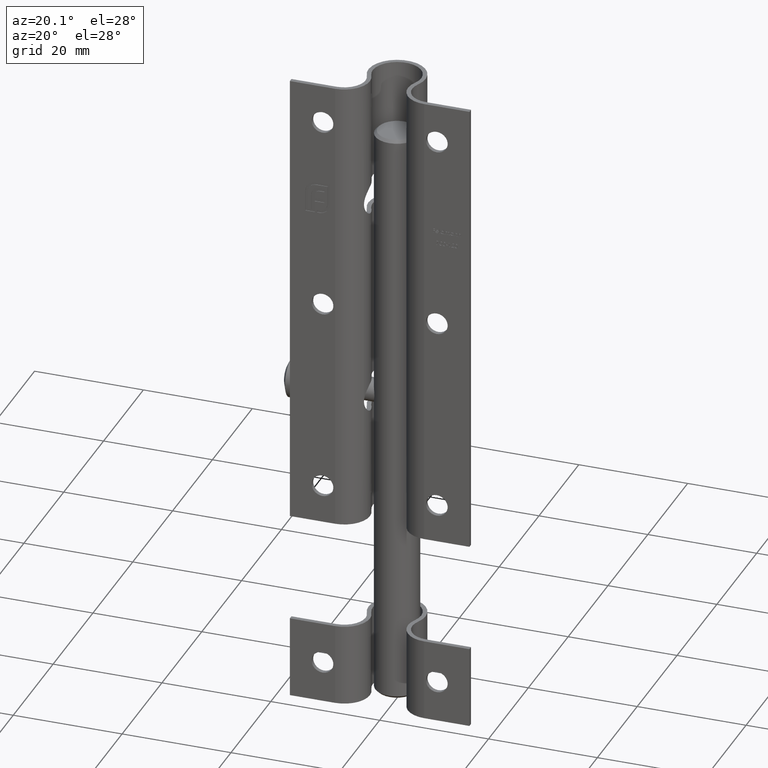
[diagram: clean part render]
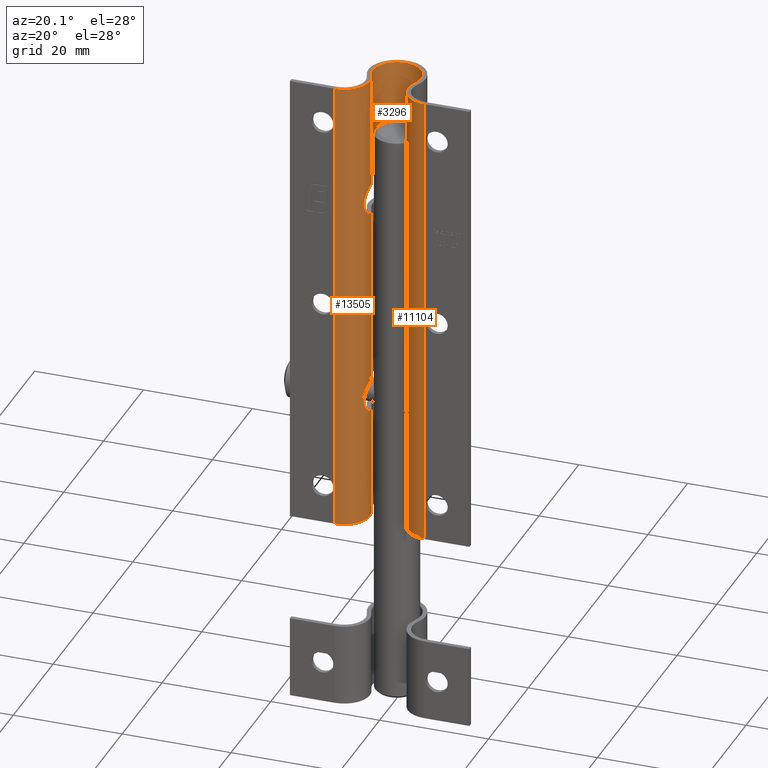
[diagram: same view with one multi-face feature highlighted, each face labeled with its STEP entity id]
A machine part, auxiliary view. The highlighted faces form ONE feature: a constant-radius fillet chain: 3 tangent blend faces with common blend radius 4.61133 mm. The faces share edges in the B-rep.
Their STEP definitions:
[1] entity #11104 (Cylinder):
#82 = AXIS2_PLACEMENT_3D ( 'NONE', #165, #3589, #9439 ) ;
#161 = EDGE_CURVE ( 'NONE', #2489, #2014, #4855, .T. ) ;
#165 = CARTESIAN_POINT ( 'NONE',  ( 8.192006389780432940, 4.692006389780432052, 42.50000000000000000 ) ) ;
#188 = CARTESIAN_POINT ( 'NONE',  ( 8.192006389780432940, 4.692006389780432052, -16.50000000000000000 ) ) ;
#224 = EDGE_CURVE ( 'NONE', #11765, #10050, #8314, .T. ) ;
#326 = VERTEX_POINT ( 'NONE', #534 ) ;
#344 = CARTESIAN_POINT ( 'NONE',  ( 3.860234104876121286, 2.888636763597086432, -19.96553964043160789 ) ) ;
#388 = CARTESIAN_POINT ( 'NONE',  ( 3.691057300720857803, 3.362622088446272528, -20.92626819675549399 ) ) ;
#506 = ORIENTED_EDGE ( 'NONE', *, *, #161, .T. ) ;
#534 = CARTESIAN_POINT ( 'NONE',  ( 3.579114571564577130, 5.550000000000007816, 16.49999999999999645 ) ) ;
#550 = CARTESIAN_POINT ( 'NONE',  ( 3.898379044193670317, 2.800000000000008260, 19.06685084321024704 ) ) ;
#562 = CIRCLE ( 'NONE', #1496, 4.692006389780432052 ) ;
#623 = VERTEX_POINT ( 'NONE', #5077 ) ;
#680 = CARTESIAN_POINT ( 'NONE',  ( 3.498907739587406418, 4.837574518931050171, 21.91223138786816094 ) ) ;
#778 = CARTESIAN_POINT ( 'NONE',  ( 3.568141730908221732, 3.854212275370556995, 21.44412461247959101 ) ) ;
#848 = ORIENTED_EDGE ( 'NONE', *, *, #224, .T. ) ;
#884 = CARTESIAN_POINT ( 'NONE',  ( 3.898379044193666321, 2.800000000000012257, -19.24999999999999645 ) ) ;
#935 = CIRCLE ( 'NONE', #6929, 4.692006389780432052 ) ;
#999 = DIRECTION ( 'NONE',  ( 0.000000000000000000, 1.000000000000000000, -7.394378148142230005E-16 ) ) ;
#1020 = CARTESIAN_POINT ( 'NONE',  ( 8.192006389780432940, 0.000000000000000000, 42.50000000000000000 ) ) ;
#1102 = CARTESIAN_POINT ( 'NONE',  ( 4.186792613702078114, 7.176883528275293855, 16.43112239479151526 ) ) ;
#1168 = ORIENTED_EDGE ( 'NONE', *, *, #1222, .T. ) ;
#1222 = EDGE_CURVE ( 'NONE', #15018, #2489, #9044, .T. ) ;
#1258 = CARTESIAN_POINT ( 'NONE',  ( 3.898379044193666765, 2.800000000000012701, -19.43314915678975296 ) ) ;
#1335 = CARTESIAN_POINT ( 'NONE',  ( 8.192006389780432940, 4.692006389780432052, 21.99999999999999645 ) ) ;
#1399 = ORIENTED_EDGE ( 'NONE', *, *, #8304, .T. ) ;
#1484 = DIRECTION ( 'NONE',  ( -0.000000000000000000, -0.000000000000000000, -1.000000000000000000 ) ) ;
#1496 = AXIS2_PLACEMENT_3D ( 'NONE', #1335, #3721, #11882 ) ;
#1498 = CARTESIAN_POINT ( 'NONE',  ( 3.890274349177481383, 2.818108156749688842, 18.88720775933262885 ) ) ;
#1595 = CARTESIAN_POINT ( 'NONE',  ( 3.890274349177479607, 2.818108156749692839, -19.61279224066736759 ) ) ;
#1600 = CARTESIAN_POINT ( 'NONE',  ( 3.497175392052650267, 4.658624790417939643, -21.85774118212299655 ) ) ;
#1622 = CARTESIAN_POINT ( 'NONE',  ( 3.987574158258543999, 6.774714620013430277, 16.34897453628892094 ) ) ;
#1628 = CARTESIAN_POINT ( 'NONE',  ( 3.987574158258543999, 6.774714620013430277, 42.50000000000000000 ) ) ;
#1908 = CARTESIAN_POINT ( 'NONE',  ( 3.987574158258543999, 6.774714620013430277, 21.99999999999999645 ) ) ;
#1968 = CARTESIAN_POINT ( 'NONE',  ( 3.691406623386029207, 3.361471644519914648, 20.92470494218871124 ) ) ;
#2014 = VERTEX_POINT ( 'NONE', #8211 ) ;
#2021 = CARTESIAN_POINT ( 'NONE',  ( 3.898379044193670762, 2.800000000000007372, 19.24999999999999645 ) ) ;
#2183 = VECTOR ( 'NONE', #2363, 1000.000000000000000 ) ;
#2245 = CARTESIAN_POINT ( 'NONE',  ( 8.192006389780432940, 4.692006389780432052, -22.00000000000000000 ) ) ;
#2306 = CARTESIAN_POINT ( 'NONE',  ( 4.749999999999997335, 7.880660647371093397, -16.50000000000000000 ) ) ;
#2309 = VERTEX_POINT ( 'NONE', #4517 ) ;
#2318 = ORIENTED_EDGE ( 'NONE', *, *, #10758, .T. ) ;
#2363 = DIRECTION ( 'NONE',  ( -0.000000000000000000, -0.000000000000000000, -1.000000000000000000 ) ) ;
#2489 = VERTEX_POINT ( 'NONE', #3825 ) ;
#2690 = CARTESIAN_POINT ( 'NONE',  ( 3.545602477263216201, 5.369826553749674325, -22.00000000000000000 ) ) ;
#2709 = CARTESIAN_POINT ( 'NONE',  ( 8.192006389780432940, 4.692006389780432052, 16.49999999999999645 ) ) ;
#2741 = CARTESIAN_POINT ( 'NONE',  ( 3.518372371251835329, 4.160421129227040105, -21.65021372187817050 ) ) ;
#2750 = CARTESIAN_POINT ( 'NONE',  ( 3.691057300720857803, 3.362622088446270752, 17.57373180324449891 ) ) ;
#2903 = CARTESIAN_POINT ( 'NONE',  ( 3.837950569152767777, 2.941986524527265168, 18.35951786173611211 ) ) ;
#2992 = EDGE_CURVE ( 'NONE', #2309, #7331, #8814, .T. ) ;
#3051 = CARTESIAN_POINT ( 'NONE',  ( 3.754721859227560188, 3.163534289763231477, 20.62806909115463228 ) ) ;
#3118 = FACE_OUTER_BOUND ( 'NONE', #3782, .T. ) ;
#3156 = CARTESIAN_POINT ( 'NONE',  ( 3.898379044193669429, 2.800000000000007816, 19.43316427364764110 ) ) ;
#3160 = EDGE_CURVE ( 'NONE', #8894, #623, #14924, .T. ) ;
#3163 = CARTESIAN_POINT ( 'NONE',  ( 3.523280389768471910, 5.191368540408938692, -16.51752685194924197 ) ) ;
#3214 = CARTESIAN_POINT ( 'NONE',  ( 3.579114571564578906, 5.550000000000012257, -16.50000000000000000 ) ) ;
#3235 = VERTEX_POINT ( 'NONE', #6793 ) ;
#3259 = CARTESIAN_POINT ( 'NONE',  ( 3.498907739587406862, 4.837574518931056389, -16.58776861213182485 ) ) ;
#3336 = EDGE_CURVE ( 'NONE', #326, #3235, #935, .T. ) ;
#3388 = CIRCLE ( 'NONE', #82, 4.692006389780432052 ) ;
#3464 = LINE ( 'NONE', #1020, #2183 ) ;
#3537 = CARTESIAN_POINT ( 'NONE',  ( 3.987574158258543999, 6.774714620013430277, -16.34897453628892094 ) ) ;
#3562 = ORIENTED_EDGE ( 'NONE', *, *, #2992, .T. ) ;
#3589 = DIRECTION ( 'NONE',  ( 0.000000000000000000, 0.000000000000000000, 1.000000000000000000 ) ) ;
#3603 = DIRECTION ( 'NONE',  ( 1.000000000000000000, 0.000000000000000000, 0.000000000000000000 ) ) ;
#3721 = DIRECTION ( 'NONE',  ( 0.000000000000000000, -5.337610695313251385E-16, 1.000000000000000000 ) ) ;
#3782 = EDGE_LOOP ( 'NONE', ( #8209, #6374, #3991, #4856, #2318, #1168, #506, #1399, #8526, #4811, #4359, #3562, #8761, #13561, #12287, #848 ) ) ;
#3825 = CARTESIAN_POINT ( 'NONE',  ( 3.987574158258543999, 6.774714620013430277, -16.34897453628892094 ) ) ;
#3826 = EDGE_CURVE ( 'NONE', #10050, #11708, #562, .T. ) ;
#3991 = ORIENTED_EDGE ( 'NONE', *, *, #7950, .T. ) ;
#4080 = CARTESIAN_POINT ( 'NONE',  ( 3.785060657178169308, 3.079802640925759949, 18.02819079474859620 ) ) ;
#4103 = CARTESIAN_POINT ( 'NONE',  ( 3.579114571564578906, 5.550000000000012257, -16.50000000000000000 ) ) ;
#4239 = CARTESIAN_POINT ( 'NONE',  ( 3.545602477263214869, 5.369826553749670772, 16.49999999999999289 ) ) ;
#4245 = DIRECTION ( 'NONE',  ( -0.000000000000000000, -0.000000000000000000, -1.000000000000000000 ) ) ;
#4287 = CARTESIAN_POINT ( 'NONE',  ( 3.754721859227557079, 3.163534289763235918, -17.87193090884535707 ) ) ;
#4359 = ORIENTED_EDGE ( 'NONE', *, *, #4524, .T. ) ;
#4397 = CARTESIAN_POINT ( 'NONE',  ( 3.523280389768470577, 5.191368540408933363, 21.98247314805074737 ) ) ;
#4455 = CARTESIAN_POINT ( 'NONE',  ( 3.860288790363647582, 2.888506928086308712, -18.53500114887742711 ) ) ;
#4503 = AXIS2_PLACEMENT_3D ( 'NONE', #6983, #8146, #3603 ) ;
#4517 = CARTESIAN_POINT ( 'NONE',  ( 3.987574158258543999, 6.774714620013430277, -22.00000000000000000 ) ) ;
#4524 = EDGE_CURVE ( 'NONE', #13133, #2309, #6990, .T. ) ;
#4811 = ORIENTED_EDGE ( 'NONE', *, *, #12370, .T. ) ;
#4855 = B_SPLINE_CURVE_WITH_KNOTS ( 'NONE', 3,
 ( #3537, #8125, #13023, #2306 ),
 .UNSPECIFIED., .F., .F.,
 ( 4, 4 ),
 ( 0.000000000000000000, 0.001351746451917853857 ),
 .UNSPECIFIED. ) ;
#4856 = ORIENTED_EDGE ( 'NONE', *, *, #3336, .T. ) ;
#5077 = CARTESIAN_POINT ( 'NONE',  ( 3.898379044193666321, 2.800000000000012257, -19.24999999999999645 ) ) ;
#5151 = CARTESIAN_POINT ( 'NONE',  ( 3.568193771479003296, 3.854131567572121941, -21.44389746033304434 ) ) ;
#5155 = DIRECTION ( 'NONE',  ( -0.000000000000000000, -0.000000000000000000, -1.000000000000000000 ) ) ;
#5196 = CARTESIAN_POINT ( 'NONE',  ( 3.523158520165889485, 5.190641001288854639, -21.98245754527466644 ) ) ;
#5404 = CARTESIAN_POINT ( 'NONE',  ( 3.545618765282634310, 5.369914124182142423, 21.99999999999999289 ) ) ;
#5466 = CARTESIAN_POINT ( 'NONE',  ( 3.890274128414914934, 2.818110122385881766, -18.88730670596122607 ) ) ;
#5882 = CARTESIAN_POINT ( 'NONE',  ( 3.987574158258543999, 6.774714620013430277, 16.34897453628892094 ) ) ;
#5945 = VERTEX_POINT ( 'NONE', #7796 ) ;
#6202 = DIRECTION ( 'NONE',  ( 0.000000000000000000, -1.000000000000000000, 0.000000000000000000 ) ) ;
#6226 = EDGE_CURVE ( 'NONE', #11765, #5945, #3388, .T. ) ;
#6277 = CARTESIAN_POINT ( 'NONE',  ( 3.754585640907927679, 3.163902198170541968, 17.87121993214591598 ) ) ;
#6374 = ORIENTED_EDGE ( 'NONE', *, *, #8466, .T. ) ;
#6411 = CARTESIAN_POINT ( 'NONE',  ( 3.987574158258543999, 6.774714620013430277, 42.50000000000000000 ) ) ;
#6681 = CARTESIAN_POINT ( 'NONE',  ( 3.785156536112600278, 3.079540127169826835, 20.47129747205535821 ) ) ;
#6742 = CARTESIAN_POINT ( 'NONE',  ( 3.497129235556928784, 4.660692729746701346, -16.64148786864787866 ) ) ;
#6793 = CARTESIAN_POINT ( 'NONE',  ( 4.749999999999999112, 7.880660647371095173, 16.49999999999999645 ) ) ;
#6855 = AXIS2_PLACEMENT_3D ( 'NONE', #188, #13256, #6202 ) ;
#6929 = AXIS2_PLACEMENT_3D ( 'NONE', #2709, #12152, #14519 ) ;
#6983 = CARTESIAN_POINT ( 'NONE',  ( 8.192006389780432940, 4.692006389780432052, -42.50000000000000000 ) ) ;
#6990 = CIRCLE ( 'NONE', #13030, 4.692006389780432052 ) ;
#7331 = VERTEX_POINT ( 'NONE', #13383 ) ;
#7393 = CARTESIAN_POINT ( 'NONE',  ( 3.658158134781194448, 3.477168001903597094, 17.43408935811589444 ) ) ;
#7400 = AXIS2_PLACEMENT_3D ( 'NONE', #13429, #5155, #14505 ) ;
#7602 = CARTESIAN_POINT ( 'NONE',  ( 3.898379044193670762, 2.800000000000007372, 19.24999999999999645 ) ) ;
#7640 = B_SPLINE_CURVE_WITH_KNOTS ( 'NONE', 3,
 ( #10565, #12826, #1102, #5882 ),
 .UNSPECIFIED., .F., .F.,
 ( 4, 4 ),
 ( 0.000000000000000000, 0.001351746451917854941 ),
 .UNSPECIFIED. ) ;
#7749 = VERTEX_POINT ( 'NONE', #8581 ) ;
#7753 = CARTESIAN_POINT ( 'NONE',  ( 3.523158520165889040, 5.190641001288851974, 16.51754245472533000 ) ) ;
#7796 = CARTESIAN_POINT ( 'NONE',  ( 8.192006389780432940, 0.000000000000000000, 42.50000000000000000 ) ) ;
#7799 = CARTESIAN_POINT ( 'NONE',  ( 3.497129235556927895, 4.660692729746694241, 21.85851213135211424 ) ) ;
#7824 = CARTESIAN_POINT ( 'NONE',  ( 3.987574158258543999, 6.774714620013430277, 42.50000000000000000 ) ) ;
#7950 = EDGE_CURVE ( 'NONE', #7749, #326, #9615, .T. ) ;
#8125 = CARTESIAN_POINT ( 'NONE',  ( 4.186792613702077226, 7.176883528275292079, -16.43112239479151881 ) ) ;
#8146 = DIRECTION ( 'NONE',  ( 0.000000000000000000, 0.000000000000000000, 1.000000000000000000 ) ) ;
#8209 = ORIENTED_EDGE ( 'NONE', *, *, #3826, .T. ) ;
#8211 = CARTESIAN_POINT ( 'NONE',  ( 4.749999999999997335, 7.880660647371093397, -16.50000000000000000 ) ) ;
#8304 = EDGE_CURVE ( 'NONE', #2014, #8894, #14176, .T. ) ;
#8314 = LINE ( 'NONE', #6411, #11647 ) ;
#8466 = EDGE_CURVE ( 'NONE', #11708, #7749, #9224, .T. ) ;
#8526 = ORIENTED_EDGE ( 'NONE', *, *, #3160, .T. ) ;
#8581 = CARTESIAN_POINT ( 'NONE',  ( 3.898379044193670762, 2.800000000000007372, 19.24999999999999645 ) ) ;
#8587 = CARTESIAN_POINT ( 'NONE',  ( 3.518372371251835773, 4.160421129227040105, 16.84978627812181884 ) ) ;
#8631 = B_SPLINE_CURVE_WITH_KNOTS ( 'NONE', 3,
 ( #13126, #1258, #1595, #344, #9766, #12180, #8634, #388, #9713, #5151, #2741, #1600, #10947, #5196, #2690, #13374 ),
 .UNSPECIFIED., .F., .F.,
 ( 4, 2, 2, 2, 2, 2, 2, 4 ),
 ( 0.000000000000000000, 0.0005410592088727733369, 0.001082118417745546674, 0.001623177626618320119, 0.002164236835491093348, 0.003246355253236646310, 0.003787414462109422141, 0.004328473670982197104 ),
 .UNSPECIFIED. ) ;
#8634 = CARTESIAN_POINT ( 'NONE',  ( 3.754585640907927679, 3.163902198170545077, -20.62878006785407692 ) ) ;
#8664 = VECTOR ( 'NONE', #13699, 1000.000000000000000 ) ;
#8665 = EDGE_CURVE ( 'NONE', #7331, #14976, #12525, .T. ) ;
#8698 = CARTESIAN_POINT ( 'NONE',  ( 8.192006389780432940, 0.000000000000000000, -42.50000000000000000 ) ) ;
#8761 = ORIENTED_EDGE ( 'NONE', *, *, #8665, .T. ) ;
#8814 = LINE ( 'NONE', #1628, #11952 ) ;
#8884 = CARTESIAN_POINT ( 'NONE',  ( 3.518316017086687619, 4.159789733533557410, 21.65013067485033815 ) ) ;
#8894 = VERTEX_POINT ( 'NONE', #4103 ) ;
#8991 = CARTESIAN_POINT ( 'NONE',  ( 3.658385527647846747, 3.476284098231791742, 21.06495098123249932 ) ) ;
#9044 = LINE ( 'NONE', #7824, #8664 ) ;
#9194 = CARTESIAN_POINT ( 'NONE',  ( 3.579114571564577130, 5.550000000000005151, 21.99999999999999645 ) ) ;
#9224 = B_SPLINE_CURVE_WITH_KNOTS ( 'NONE', 3,
 ( #14874, #5404, #4397, #680, #7799, #8884, #778, #8991, #1968, #3051, #6681, #11424, #14929, #10183, #3156, #2021 ),
 .UNSPECIFIED., .F., .F.,
 ( 4, 2, 2, 2, 2, 2, 2, 4 ),
 ( 0.000000000000000000, 0.0005414619322903201646, 0.001082923864580640329, 0.002165847729161287163, 0.002707309661451606352, 0.003248771593741925541, 0.003790233526032244730, 0.004331695458322563919 ),
 .UNSPECIFIED. ) ;
#9439 = DIRECTION ( 'NONE',  ( 1.000000000000000000, 0.000000000000000000, 0.000000000000000000 ) ) ;
#9615 = B_SPLINE_CURVE_WITH_KNOTS ( 'NONE', 3,
 ( #7602, #550, #1498, #9926, #2903, #4080, #6277, #2750, #7393, #12295, #8587, #10958, #12143, #7753, #4239, #10146 ),
 .UNSPECIFIED., .F., .F.,
 ( 4, 2, 2, 2, 2, 2, 2, 4 ),
 ( 0.000000000000000000, 0.0005410592088727727948, 0.001082118417745545590, 0.001623177626618318384, 0.002164236835491091179, 0.003246355253236645009, 0.003787414462109423008, 0.004328473670982201441 ),
 .UNSPECIFIED. ) ;
#9713 = CARTESIAN_POINT ( 'NONE',  ( 3.658158134781193560, 3.477168001903601091, -21.06591064188410556 ) ) ;
#9766 = CARTESIAN_POINT ( 'NONE',  ( 3.837950569152766889, 2.941986524527269609, -20.14048213826388434 ) ) ;
#9926 = CARTESIAN_POINT ( 'NONE',  ( 3.860234104876122174, 2.888636763597081991, 18.53446035956836724 ) ) ;
#10050 = VERTEX_POINT ( 'NONE', #1908 ) ;
#10146 = CARTESIAN_POINT ( 'NONE',  ( 3.579114571564577130, 5.550000000000007816, 16.49999999999999645 ) ) ;
#10183 = CARTESIAN_POINT ( 'NONE',  ( 3.890274128414916710, 2.818110122385877769, 19.61269329403876327 ) ) ;
#10189 = CARTESIAN_POINT ( 'NONE',  ( 3.545618765282633866, 5.369914124182148640, -16.49999999999999289 ) ) ;
#10565 = CARTESIAN_POINT ( 'NONE',  ( 4.749999999999999112, 7.880660647371095173, 16.49999999999999645 ) ) ;
#10622 = CARTESIAN_POINT ( 'NONE',  ( 3.987574158258543999, 6.774714620013430277, 42.50000000000000000 ) ) ;
#10758 = EDGE_CURVE ( 'NONE', #3235, #15018, #7640, .T. ) ;
#10947 = CARTESIAN_POINT ( 'NONE',  ( 3.498770330876382673, 4.834527268255097709, -21.91149617636633096 ) ) ;
#10958 = CARTESIAN_POINT ( 'NONE',  ( 3.497175392052649823, 4.658624790417937866, 16.64225881787699635 ) ) ;
#11104 = ADVANCED_FACE ( 'NONE', ( #3118 ), #11751, .T. ) ;
#11316 = CARTESIAN_POINT ( 'NONE',  ( 3.518316017086688952, 4.159789733533563627, -16.84986932514965829 ) ) ;
#11375 = CARTESIAN_POINT ( 'NONE',  ( 3.898379044193667653, 2.800000000000011813, -19.06683572635235535 ) ) ;
#11424 = CARTESIAN_POINT ( 'NONE',  ( 3.838062049014778321, 2.941708769847081406, 20.13969453028568424 ) ) ;
#11482 = CARTESIAN_POINT ( 'NONE',  ( 3.568141730908222176, 3.854212275370561880, -17.05587538752039833 ) ) ;
#11647 = VECTOR ( 'NONE', #1484, 1000.000000000000000 ) ;
#11648 = EDGE_CURVE ( 'NONE', #5945, #14976, #3464, .T. ) ;
#11708 = VERTEX_POINT ( 'NONE', #9194 ) ;
#11751 = CYLINDRICAL_SURFACE ( 'NONE', #7400, 4.692006389780432052 ) ;
#11765 = VERTEX_POINT ( 'NONE', #10622 ) ;
#11882 = DIRECTION ( 'NONE',  ( 0.000000000000000000, -1.000000000000000000, -7.394378148142230005E-16 ) ) ;
#11952 = VECTOR ( 'NONE', #4245, 1000.000000000000000 ) ;
#12143 = CARTESIAN_POINT ( 'NONE',  ( 3.498770330876382229, 4.834527268255093269, 16.58850382363366194 ) ) ;
#12152 = DIRECTION ( 'NONE',  ( 0.000000000000000000, 2.668805347656624706E-16, -1.000000000000000000 ) ) ;
#12180 = CARTESIAN_POINT ( 'NONE',  ( 3.785060657178167975, 3.079802640925766166, -20.47180920525140024 ) ) ;
#12287 = ORIENTED_EDGE ( 'NONE', *, *, #6226, .F. ) ;
#12295 = CARTESIAN_POINT ( 'NONE',  ( 3.568193771479005960, 3.854131567572118833, 17.05610253966695211 ) ) ;
#12370 = EDGE_CURVE ( 'NONE', #623, #13133, #8631, .T. ) ;
#12496 = CARTESIAN_POINT ( 'NONE',  ( 3.785156536112598946, 3.079540127169831276, -18.02870252794463468 ) ) ;
#12525 = CIRCLE ( 'NONE', #4503, 4.692006389780432052 ) ;
#12605 = CARTESIAN_POINT ( 'NONE',  ( 3.658385527647844526, 3.476284098231794850, -17.43504901876750068 ) ) ;
#12826 = CARTESIAN_POINT ( 'NONE',  ( 4.438651911876778655, 7.544574630451911013, 16.49999999999999645 ) ) ;
#12984 = CARTESIAN_POINT ( 'NONE',  ( 3.579114571564578018, 5.550000000000009592, -22.00000000000000000 ) ) ;
#13023 = CARTESIAN_POINT ( 'NONE',  ( 4.438651911876773326, 7.544574630451907460, -16.50000000000001776 ) ) ;
#13030 = AXIS2_PLACEMENT_3D ( 'NONE', #2245, #15003, #999 ) ;
#13126 = CARTESIAN_POINT ( 'NONE',  ( 3.898379044193666321, 2.800000000000012257, -19.24999999999999645 ) ) ;
#13133 = VERTEX_POINT ( 'NONE', #12984 ) ;
#13256 = DIRECTION ( 'NONE',  ( 0.000000000000000000, 2.668805347656625692E-16, 1.000000000000000000 ) ) ;
#13374 = CARTESIAN_POINT ( 'NONE',  ( 3.579114571564578018, 5.550000000000009592, -22.00000000000000000 ) ) ;
#13383 = CARTESIAN_POINT ( 'NONE',  ( 3.987574158258543999, 6.774714620013430277, -42.50000000000000000 ) ) ;
#13429 = CARTESIAN_POINT ( 'NONE',  ( 8.192006389780432940, 4.692006389780432052, 42.50000000000000000 ) ) ;
#13561 = ORIENTED_EDGE ( 'NONE', *, *, #11648, .F. ) ;
#13699 = DIRECTION ( 'NONE',  ( -0.000000000000000000, -0.000000000000000000, -1.000000000000000000 ) ) ;
#13833 = CARTESIAN_POINT ( 'NONE',  ( 3.838062049014776989, 2.941708769847087623, -18.36030546971431932 ) ) ;
#14176 = CIRCLE ( 'NONE', #6855, 4.692006389780432052 ) ;
#14505 = DIRECTION ( 'NONE',  ( -1.000000000000000000, 0.000000000000000000, 0.000000000000000000 ) ) ;
#14519 = DIRECTION ( 'NONE',  ( 0.000000000000000000, 1.000000000000000000, 0.000000000000000000 ) ) ;
#14874 = CARTESIAN_POINT ( 'NONE',  ( 3.579114571564577130, 5.550000000000005151, 21.99999999999999645 ) ) ;
#14924 = B_SPLINE_CURVE_WITH_KNOTS ( 'NONE', 3,
 ( #3214, #10189, #3163, #3259, #6742, #11316, #11482, #12605, #14988, #4287, #12496, #13833, #4455, #5466, #11375, #884 ),
 .UNSPECIFIED., .F., .F.,
 ( 4, 2, 2, 2, 2, 2, 2, 4 ),
 ( 0.000000000000000000, 0.0005414619322903221161, 0.001082923864580644232, 0.002165847729161290633, 0.002707309661451609388, 0.003248771593741928143, 0.003790233526032246898, 0.004331695458322565653 ),
 .UNSPECIFIED. ) ;
#14929 = CARTESIAN_POINT ( 'NONE',  ( 3.860288790363648470, 2.888506928086303827, 19.96499885112256933 ) ) ;
#14976 = VERTEX_POINT ( 'NONE', #8698 ) ;
#14988 = CARTESIAN_POINT ( 'NONE',  ( 3.691406623386028762, 3.361471644519919089, -17.57529505781129231 ) ) ;
#15003 = DIRECTION ( 'NONE',  ( -0.000000000000000000, -5.337610695313250398E-16, -1.000000000000000000 ) ) ;
#15018 = VERTEX_POINT ( 'NONE', #1622 ) ;
[2] entity #3296 (Cylinder):
#224 = EDGE_CURVE ( 'NONE', #11765, #10050, #8314, .T. ) ;
#262 = CARTESIAN_POINT ( 'NONE',  ( -3.987574158258543999, 6.774714620013430277, 42.50000000000000000 ) ) ;
#1065 = VERTEX_POINT ( 'NONE', #262 ) ;
#1361 = DIRECTION ( 'NONE',  ( -0.000000000000000000, -0.000000000000000000, -1.000000000000000000 ) ) ;
#1484 = DIRECTION ( 'NONE',  ( -0.000000000000000000, -0.000000000000000000, -1.000000000000000000 ) ) ;
#1908 = CARTESIAN_POINT ( 'NONE',  ( 3.987574158258543999, 6.774714620013430277, 21.99999999999999645 ) ) ;
#3249 = CIRCLE ( 'NONE', #12108, 4.450000000000001954 ) ;
#3296 = ADVANCED_FACE ( 'NONE', ( #7703 ), #4053, .F. ) ;
#4053 = CYLINDRICAL_SURFACE ( 'NONE', #11371, 4.450000000000001954 ) ;
#5617 = DIRECTION ( 'NONE',  ( -0.000000000000000000, -0.000000000000000000, -1.000000000000000000 ) ) ;
#5933 = ORIENTED_EDGE ( 'NONE', *, *, #224, .F. ) ;
#6411 = CARTESIAN_POINT ( 'NONE',  ( 3.987574158258543999, 6.774714620013430277, 42.50000000000000000 ) ) ;
#7212 = CARTESIAN_POINT ( 'NONE',  ( 0.000000000000000000, 8.749999999999998224, 42.50000000000000000 ) ) ;
#7470 = CARTESIAN_POINT ( 'NONE',  ( 0.000000000000000000, 8.749999999999998224, 22.00000000000000000 ) ) ;
#7490 = EDGE_LOOP ( 'NONE', ( #10106, #13479, #5933, #8976 ) ) ;
#7703 = FACE_OUTER_BOUND ( 'NONE', #7490, .T. ) ;
#7852 = CARTESIAN_POINT ( 'NONE',  ( 0.000000000000000000, 8.749999999999998224, 42.50000000000000000 ) ) ;
#7886 = DIRECTION ( 'NONE',  ( -0.000000000000000000, 5.337610695313251385E-16, -1.000000000000000000 ) ) ;
#8314 = LINE ( 'NONE', #6411, #11647 ) ;
#8752 = DIRECTION ( 'NONE',  ( -0.000000000000000000, -0.000000000000000000, -1.000000000000000000 ) ) ;
#8976 = ORIENTED_EDGE ( 'NONE', *, *, #12655, .F. ) ;
#9188 = DIRECTION ( 'NONE',  ( 0.000000000000000000, -1.000000000000000000, -7.796510004390140854E-16 ) ) ;
#9350 = AXIS2_PLACEMENT_3D ( 'NONE', #7852, #5617, #15085 ) ;
#9494 = DIRECTION ( 'NONE',  ( -1.000000000000000000, 0.000000000000000000, 0.000000000000000000 ) ) ;
#9528 = LINE ( 'NONE', #13596, #13393 ) ;
#10050 = VERTEX_POINT ( 'NONE', #1908 ) ;
#10106 = ORIENTED_EDGE ( 'NONE', *, *, #11981, .T. ) ;
#10622 = CARTESIAN_POINT ( 'NONE',  ( 3.987574158258543999, 6.774714620013430277, 42.50000000000000000 ) ) ;
#11312 = VERTEX_POINT ( 'NONE', #12853 ) ;
#11371 = AXIS2_PLACEMENT_3D ( 'NONE', #7212, #1361, #9494 ) ;
#11647 = VECTOR ( 'NONE', #1484, 1000.000000000000000 ) ;
#11765 = VERTEX_POINT ( 'NONE', #10622 ) ;
#11981 = EDGE_CURVE ( 'NONE', #1065, #11312, #9528, .T. ) ;
#12108 = AXIS2_PLACEMENT_3D ( 'NONE', #7470, #7886, #9188 ) ;
#12655 = EDGE_CURVE ( 'NONE', #1065, #11765, #14478, .T. ) ;
#12853 = CARTESIAN_POINT ( 'NONE',  ( -3.987574158258543111, 6.774714620013430277, 22.00000000000000000 ) ) ;
#13393 = VECTOR ( 'NONE', #8752, 1000.000000000000000 ) ;
#13479 = ORIENTED_EDGE ( 'NONE', *, *, #14583, .T. ) ;
#13596 = CARTESIAN_POINT ( 'NONE',  ( -3.987574158258543999, 6.774714620013430277, 42.50000000000000000 ) ) ;
#14478 = CIRCLE ( 'NONE', #9350, 4.450000000000001954 ) ;
#14583 = EDGE_CURVE ( 'NONE', #11312, #10050, #3249, .T. ) ;
#15085 = DIRECTION ( 'NONE',  ( -1.000000000000000000, 0.000000000000000000, 0.000000000000000000 ) ) ;
[3] entity #13505 (Cylinder):
#169 = AXIS2_PLACEMENT_3D ( 'NONE', #3113, #8783, #14723 ) ;
#183 = CARTESIAN_POINT ( 'NONE',  ( -3.523158520165888596, 5.190641001288850198, 21.98245754527466644 ) ) ;
#262 = CARTESIAN_POINT ( 'NONE',  ( -3.987574158258543999, 6.774714620013430277, 42.50000000000000000 ) ) ;
#449 = CARTESIAN_POINT ( 'NONE',  ( -3.518316017086689840, 4.159789733533561851, -21.65013067485034171 ) ) ;
#496 = CARTESIAN_POINT ( 'NONE',  ( -3.898379044193667653, 2.800000000000011813, -19.43316427364765175 ) ) ;
#627 = ORIENTED_EDGE ( 'NONE', *, *, #12033, .T. ) ;
#657 = DIRECTION ( 'NONE',  ( 0.000000000000000000, -1.000000000000000000, 0.000000000000000000 ) ) ;
#691 = CARTESIAN_POINT ( 'NONE',  ( -3.545602477263214869, 5.369826553749675213, -16.49999999999999289 ) ) ;
#699 = DIRECTION ( 'NONE',  ( 0.000000000000000000, 0.000000000000000000, 1.000000000000000000 ) ) ;
#806 = CARTESIAN_POINT ( 'NONE',  ( -3.987574158258543999, 6.774714620013430277, 16.34897453628892094 ) ) ;
#926 = CIRCLE ( 'NONE', #169, 4.692006389780432052 ) ;
#952 = VERTEX_POINT ( 'NONE', #3340 ) ;
#962 = CIRCLE ( 'NONE', #10439, 4.692006389780432052 ) ;
#1035 = CARTESIAN_POINT ( 'NONE',  ( -3.898379044193670762, 2.800000000000007372, 19.24999999999999645 ) ) ;
#1057 = CARTESIAN_POINT ( 'NONE',  ( -3.987574158258543111, 6.774714620013430277, -22.00000000000000000 ) ) ;
#1065 = VERTEX_POINT ( 'NONE', #262 ) ;
#1198 = EDGE_CURVE ( 'NONE', #1799, #5424, #962, .T. ) ;
#1207 = FACE_OUTER_BOUND ( 'NONE', #7990, .T. ) ;
#1244 = CARTESIAN_POINT ( 'NONE',  ( -4.750000000000000888, 7.880660647371096950, -16.50000000000000000 ) ) ;
#1318 = CIRCLE ( 'NONE', #3220, 4.692006389780432052 ) ;
#1339 = CARTESIAN_POINT ( 'NONE',  ( -3.545618765282633866, 5.369914124182145976, 16.49999999999999289 ) ) ;
#1363 = CARTESIAN_POINT ( 'NONE',  ( -4.750000000000000888, 7.880660647371096950, 16.49999999999999645 ) ) ;
#1408 = ORIENTED_EDGE ( 'NONE', *, *, #13720, .T. ) ;
#1440 = CARTESIAN_POINT ( 'NONE',  ( -3.523280389768469689, 5.191368540408932475, 16.51752685194924197 ) ) ;
#1603 = CARTESIAN_POINT ( 'NONE',  ( -3.987574158258543999, 6.774714620013430277, -16.34897453628891384 ) ) ;
#1606 = CARTESIAN_POINT ( 'NONE',  ( -3.691406623386027430, 3.361471644519919089, -20.92470494218871124 ) ) ;
#1652 = CARTESIAN_POINT ( 'NONE',  ( -4.438651911876779543, 7.544574630451911901, -16.49999999999999645 ) ) ;
#1702 = CARTESIAN_POINT ( 'NONE',  ( -3.497129235556927895, 4.660692729746695129, 16.64148786864787866 ) ) ;
#1719 = ORIENTED_EDGE ( 'NONE', *, *, #4827, .T. ) ;
#1781 = VERTEX_POINT ( 'NONE', #7633 ) ;
#1799 = VERTEX_POINT ( 'NONE', #1057 ) ;
#1915 = EDGE_CURVE ( 'NONE', #1781, #1972, #4061, .T. ) ;
#1944 = DIRECTION ( 'NONE',  ( 0.000000000000000000, 2.668805347656625692E-16, 1.000000000000000000 ) ) ;
#1952 = ORIENTED_EDGE ( 'NONE', *, *, #12122, .T. ) ;
#1972 = VERTEX_POINT ( 'NONE', #13942 ) ;
#2040 = VERTEX_POINT ( 'NONE', #7089 ) ;
#2052 = CIRCLE ( 'NONE', #13144, 4.692006389780432052 ) ;
#2279 = CARTESIAN_POINT ( 'NONE',  ( -3.754585640907929900, 3.163902198170540636, 20.62878006785407692 ) ) ;
#2311 = CARTESIAN_POINT ( 'NONE',  ( -8.192006389780432940, 0.000000000000000000, 42.50000000000000000 ) ) ;
#2326 = CARTESIAN_POINT ( 'NONE',  ( -3.860234104876122618, 2.888636763597081991, 19.96553964043160789 ) ) ;
#2397 = ORIENTED_EDGE ( 'NONE', *, *, #1915, .T. ) ;
#2523 = CARTESIAN_POINT ( 'NONE',  ( -3.987574158258543999, 6.774714620013430277, 42.50000000000000000 ) ) ;
#2539 = CARTESIAN_POINT ( 'NONE',  ( -3.898379044193670762, 2.800000000000007372, 19.24999999999999645 ) ) ;
#2606 = VERTEX_POINT ( 'NONE', #6468 ) ;
#2873 = ORIENTED_EDGE ( 'NONE', *, *, #8297, .F. ) ;
#2930 = ORIENTED_EDGE ( 'NONE', *, *, #8725, .F. ) ;
#3113 = CARTESIAN_POINT ( 'NONE',  ( -8.192006389780432940, 4.692006389780432052, -42.50000000000000000 ) ) ;
#3178 = DIRECTION ( 'NONE',  ( -1.000000000000000000, 0.000000000000000000, 0.000000000000000000 ) ) ;
#3207 = DIRECTION ( 'NONE',  ( -0.000000000000000000, -0.000000000000000000, -1.000000000000000000 ) ) ;
#3220 = AXIS2_PLACEMENT_3D ( 'NONE', #14563, #8642, #12296 ) ;
#3340 = CARTESIAN_POINT ( 'NONE',  ( -3.987574158258543999, 6.774714620013430277, -16.34897453628891384 ) ) ;
#3382 = EDGE_CURVE ( 'NONE', #7537, #1065, #13042, .T. ) ;
#3631 = CARTESIAN_POINT ( 'NONE',  ( -3.987574158258543999, 6.774714620013430277, -42.50000000000000000 ) ) ;
#3674 = CARTESIAN_POINT ( 'NONE',  ( -3.890274128414917598, 2.818110122385876881, 18.88730670596122962 ) ) ;
#3720 = DIRECTION ( 'NONE',  ( 0.000000000000000000, -1.000000000000000000, -7.394378148142230005E-16 ) ) ;
#3801 = B_SPLINE_CURVE_WITH_KNOTS ( 'NONE', 3,
 ( #1244, #1652, #9769, #1603 ),
 .UNSPECIFIED., .F., .F.,
 ( 4, 4 ),
 ( 0.000000000000000000, 0.001351746451917859061 ),
 .UNSPECIFIED. ) ;
#3833 = CARTESIAN_POINT ( 'NONE',  ( -3.890274128414915822, 2.818110122385881766, -19.61269329403876327 ) ) ;
#3912 = DIRECTION ( 'NONE',  ( -0.000000000000000000, -0.000000000000000000, -1.000000000000000000 ) ) ;
#3927 = CARTESIAN_POINT ( 'NONE',  ( -3.785060657178167975, 3.079802640925765722, -18.02819079474860331 ) ) ;
#3929 = CARTESIAN_POINT ( 'NONE',  ( -3.898379044193666321, 2.800000000000012257, -19.24999999999999645 ) ) ;
#4032 = CARTESIAN_POINT ( 'NONE',  ( -3.568141730908221287, 3.854212275370562324, -21.44412461247959811 ) ) ;
#4040 = DIRECTION ( 'NONE',  ( 1.000000000000000000, 0.000000000000000000, 0.000000000000000000 ) ) ;
#4061 = B_SPLINE_CURVE_WITH_KNOTS ( 'NONE', 3,
 ( #13480, #9977, #12089, #5056, #10953, #3927, #5106, #14724, #10083, #13535, #4131, #7653, #8837, #5363, #691, #13581 ),
 .UNSPECIFIED., .F., .F.,
 ( 4, 2, 2, 2, 2, 2, 2, 4 ),
 ( 0.000000000000000000, 0.0005410592088727735538, 0.001082118417745547108, 0.001623177626618320553, 0.002164236835491094215, 0.003246355253236648478, 0.003787414462109424309, 0.004328473670982199706 ),
 .UNSPECIFIED. ) ;
#4077 = CARTESIAN_POINT ( 'NONE',  ( -3.860288790363649358, 2.888506928086303827, 18.53500114887742711 ) ) ;
#4115 = VERTEX_POINT ( 'NONE', #13095 ) ;
#4131 = CARTESIAN_POINT ( 'NONE',  ( -3.518372371251836217, 4.160421129227042769, -16.84978627812181884 ) ) ;
#4645 = CARTESIAN_POINT ( 'NONE',  ( -3.579114571564578018, 5.550000000000009592, -22.00000000000000000 ) ) ;
#4746 = DIRECTION ( 'NONE',  ( -0.000000000000000000, -0.000000000000000000, -1.000000000000000000 ) ) ;
#4827 = EDGE_CURVE ( 'NONE', #5980, #10866, #926, .T. ) ;
#4943 = CARTESIAN_POINT ( 'NONE',  ( -3.498770330876381784, 4.834527268255093269, 21.91149617636633096 ) ) ;
#5056 = CARTESIAN_POINT ( 'NONE',  ( -3.860234104876121286, 2.888636763597087320, -18.53446035956837434 ) ) ;
#5106 = CARTESIAN_POINT ( 'NONE',  ( -3.754585640907927679, 3.163902198170547297, -17.87121993214591598 ) ) ;
#5296 = CARTESIAN_POINT ( 'NONE',  ( -8.192006389780432940, 0.000000000000000000, -42.50000000000000000 ) ) ;
#5363 = CARTESIAN_POINT ( 'NONE',  ( -3.523158520165889929, 5.190641001288857304, -16.51754245472533000 ) ) ;
#5424 = VERTEX_POINT ( 'NONE', #4645 ) ;
#5437 = CARTESIAN_POINT ( 'NONE',  ( -8.192006389780432940, 4.692006389780432052, -16.50000000000000000 ) ) ;
#5657 = EDGE_CURVE ( 'NONE', #2606, #2040, #7251, .T. ) ;
#5980 = VERTEX_POINT ( 'NONE', #5296 ) ;
#6144 = CARTESIAN_POINT ( 'NONE',  ( -3.568193771479002852, 3.854131567572117500, 21.44389746033304434 ) ) ;
#6267 = ORIENTED_EDGE ( 'NONE', *, *, #8285, .T. ) ;
#6292 = AXIS2_PLACEMENT_3D ( 'NONE', #10208, #6699, #3178 ) ;
#6373 = CARTESIAN_POINT ( 'NONE',  ( -3.518316017086689840, 4.159789733533558298, 16.84986932514965829 ) ) ;
#6468 = CARTESIAN_POINT ( 'NONE',  ( -3.579114571564577130, 5.550000000000007816, 16.49999999999999645 ) ) ;
#6655 = DIRECTION ( 'NONE',  ( 0.000000000000000000, 1.000000000000000000, -7.394378148142230005E-16 ) ) ;
#6699 = DIRECTION ( 'NONE',  ( -0.000000000000000000, -0.000000000000000000, -1.000000000000000000 ) ) ;
#6704 = CARTESIAN_POINT ( 'NONE',  ( -4.750000000000000888, 7.880660647371096950, 16.49999999999999645 ) ) ;
#6767 = CARTESIAN_POINT ( 'NONE',  ( -4.438651911876775102, 7.544574630451910124, 16.50000000000001776 ) ) ;
#6789 = ORIENTED_EDGE ( 'NONE', *, *, #11981, .F. ) ;
#6944 = CARTESIAN_POINT ( 'NONE',  ( -3.890274349177481383, 2.818108156749688398, 19.61279224066736759 ) ) ;
#6991 = CARTESIAN_POINT ( 'NONE',  ( -3.691057300720857803, 3.362622088446268531, 20.92626819675549399 ) ) ;
#7089 = CARTESIAN_POINT ( 'NONE',  ( -3.898379044193670762, 2.800000000000007372, 19.24999999999999645 ) ) ;
#7145 = CIRCLE ( 'NONE', #13557, 4.692006389780432052 ) ;
#7251 = B_SPLINE_CURVE_WITH_KNOTS ( 'NONE', 3,
 ( #8377, #1339, #1440, #13428, #1702, #6373, #8426, #9614, #14200, #10698, #9923, #11101, #4077, #3674, #9571, #2539 ),
 .UNSPECIFIED., .F., .F.,
 ( 4, 2, 2, 2, 2, 2, 2, 4 ),
 ( 0.000000000000000000, 0.0005414619322903221161, 0.001082923864580644232, 0.002165847729161290633, 0.002707309661451609388, 0.003248771593741928143, 0.003790233526032246898, 0.004331695458322565653 ),
 .UNSPECIFIED. ) ;
#7284 = EDGE_CURVE ( 'NONE', #11807, #2606, #1318, .T. ) ;
#7333 = B_SPLINE_CURVE_WITH_KNOTS ( 'NONE', 3,
 ( #7443, #7495, #13327, #9722, #10899, #449, #4032, #8640, #1606, #13223, #9826, #11002, #7338, #3833, #496, #3929 ),
 .UNSPECIFIED., .F., .F.,
 ( 4, 2, 2, 2, 2, 2, 2, 4 ),
 ( 8.673617379884035472E-19, 0.0005414619322903226582, 0.001082923864580644449, 0.002165847729161290199, 0.002707309661451608521, 0.003248771593741926842, 0.003790233526032245597, 0.004331695458322563919 ),
 .UNSPECIFIED. ) ;
#7338 = CARTESIAN_POINT ( 'NONE',  ( -3.860288790363647582, 2.888506928086308712, -19.96499885112256933 ) ) ;
#7443 = CARTESIAN_POINT ( 'NONE',  ( -3.579114571564578018, 5.550000000000009592, -22.00000000000000000 ) ) ;
#7495 = CARTESIAN_POINT ( 'NONE',  ( -3.545618765282633866, 5.369914124182146864, -21.99999999999999645 ) ) ;
#7537 = VERTEX_POINT ( 'NONE', #2311 ) ;
#7633 = CARTESIAN_POINT ( 'NONE',  ( -3.898379044193666321, 2.800000000000012257, -19.24999999999999645 ) ) ;
#7653 = CARTESIAN_POINT ( 'NONE',  ( -3.497175392052651155, 4.658624790417942307, -16.64225881787699635 ) ) ;
#7765 = CARTESIAN_POINT ( 'NONE',  ( -8.192006389780432940, 4.692006389780432052, -22.00000000000000000 ) ) ;
#7990 = EDGE_LOOP ( 'NONE', ( #2930, #627, #14244, #10816, #12436, #6267, #6789, #9666, #10726, #1719, #2873, #10346, #1952, #2397, #12716, #1408 ) ) ;
#8272 = VERTEX_POINT ( 'NONE', #13052 ) ;
#8285 = EDGE_CURVE ( 'NONE', #4115, #11312, #2052, .T. ) ;
#8297 = EDGE_CURVE ( 'NONE', #1799, #10866, #14362, .T. ) ;
#8357 = VERTEX_POINT ( 'NONE', #13522 ) ;
#8377 = CARTESIAN_POINT ( 'NONE',  ( -3.579114571564577130, 5.550000000000007816, 16.49999999999999645 ) ) ;
#8412 = CARTESIAN_POINT ( 'NONE',  ( -3.545602477263216201, 5.369826553749671660, 22.00000000000000000 ) ) ;
#8426 = CARTESIAN_POINT ( 'NONE',  ( -3.568141730908222176, 3.854212275370557883, 17.05587538752039833 ) ) ;
#8459 = CARTESIAN_POINT ( 'NONE',  ( -3.497175392052649823, 4.658624790417935202, 21.85774118212299655 ) ) ;
#8468 = DIRECTION ( 'NONE',  ( 0.000000000000000000, -5.337610695313251385E-16, 1.000000000000000000 ) ) ;
#8507 = CARTESIAN_POINT ( 'NONE',  ( -3.518372371251836217, 4.160421129227034776, 21.65021372187817050 ) ) ;
#8640 = CARTESIAN_POINT ( 'NONE',  ( -3.658385527647844526, 3.476284098231794850, -21.06495098123249576 ) ) ;
#8642 = DIRECTION ( 'NONE',  ( 0.000000000000000000, 2.668805347656624706E-16, -1.000000000000000000 ) ) ;
#8725 = EDGE_CURVE ( 'NONE', #8357, #952, #12319, .T. ) ;
#8752 = DIRECTION ( 'NONE',  ( -0.000000000000000000, -0.000000000000000000, -1.000000000000000000 ) ) ;
#8783 = DIRECTION ( 'NONE',  ( 0.000000000000000000, 0.000000000000000000, 1.000000000000000000 ) ) ;
#8837 = CARTESIAN_POINT ( 'NONE',  ( -3.498770330876383117, 4.834527268255099486, -16.58850382363366549 ) ) ;
#9175 = LINE ( 'NONE', #14869, #9721 ) ;
#9257 = CARTESIAN_POINT ( 'NONE',  ( -3.837950569152768665, 2.941986524527265612, 20.14048213826388434 ) ) ;
#9310 = CARTESIAN_POINT ( 'NONE',  ( -3.785060657178169308, 3.079802640925760837, 20.47180920525140024 ) ) ;
#9528 = LINE ( 'NONE', #13596, #13393 ) ;
#9571 = CARTESIAN_POINT ( 'NONE',  ( -3.898379044193668541, 2.800000000000007816, 19.06683572635235890 ) ) ;
#9614 = CARTESIAN_POINT ( 'NONE',  ( -3.658385527647844970, 3.476284098231791742, 17.43504901876750068 ) ) ;
#9654 = CARTESIAN_POINT ( 'NONE',  ( -3.987574158258543999, 6.774714620013430277, 42.50000000000000000 ) ) ;
#9666 = ORIENTED_EDGE ( 'NONE', *, *, #3382, .F. ) ;
#9701 = CARTESIAN_POINT ( 'NONE',  ( -8.192006389780432940, 4.692006389780432052, 21.99999999999999645 ) ) ;
#9721 = VECTOR ( 'NONE', #3207, 1000.000000000000000 ) ;
#9722 = CARTESIAN_POINT ( 'NONE',  ( -3.498907739587407306, 4.837574518931051948, -21.91223138786816449 ) ) ;
#9735 = VECTOR ( 'NONE', #4746, 1000.000000000000000 ) ;
#9769 = CARTESIAN_POINT ( 'NONE',  ( -4.186792613702078114, 7.176883528275294744, -16.43112239479151881 ) ) ;
#9826 = CARTESIAN_POINT ( 'NONE',  ( -3.785156536112598946, 3.079540127169830832, -20.47129747205536177 ) ) ;
#9923 = CARTESIAN_POINT ( 'NONE',  ( -3.785156536112599834, 3.079540127169826391, 18.02870252794463468 ) ) ;
#9977 = CARTESIAN_POINT ( 'NONE',  ( -3.898379044193666321, 2.800000000000012257, -19.06685084321024348 ) ) ;
#10074 = EDGE_CURVE ( 'NONE', #7537, #5980, #9175, .T. ) ;
#10083 = CARTESIAN_POINT ( 'NONE',  ( -3.658158134781190896, 3.477168001903599759, -17.43408935811588734 ) ) ;
#10208 = CARTESIAN_POINT ( 'NONE',  ( -8.192006389780432940, 4.692006389780432052, 42.50000000000000000 ) ) ;
#10346 = ORIENTED_EDGE ( 'NONE', *, *, #1198, .T. ) ;
#10439 = AXIS2_PLACEMENT_3D ( 'NONE', #7765, #15057, #6655 ) ;
#10650 = EDGE_CURVE ( 'NONE', #1972, #8272, #7145, .T. ) ;
#10698 = CARTESIAN_POINT ( 'NONE',  ( -3.754721859227560188, 3.163534289763231477, 17.87193090884535707 ) ) ;
#10726 = ORIENTED_EDGE ( 'NONE', *, *, #10074, .T. ) ;
#10816 = ORIENTED_EDGE ( 'NONE', *, *, #5657, .T. ) ;
#10866 = VERTEX_POINT ( 'NONE', #3631 ) ;
#10899 = CARTESIAN_POINT ( 'NONE',  ( -3.497129235556928784, 4.660692729746699570, -21.85851213135211424 ) ) ;
#10953 = CARTESIAN_POINT ( 'NONE',  ( -3.837950569152766445, 2.941986524527269609, -18.35951786173611211 ) ) ;
#11002 = CARTESIAN_POINT ( 'NONE',  ( -3.838062049014776544, 2.941708769847087623, -20.13969453028568779 ) ) ;
#11101 = CARTESIAN_POINT ( 'NONE',  ( -3.838062049014778765, 2.941708769847082738, 18.36030546971431932 ) ) ;
#11312 = VERTEX_POINT ( 'NONE', #12853 ) ;
#11622 = VECTOR ( 'NONE', #3912, 1000.000000000000000 ) ;
#11684 = CARTESIAN_POINT ( 'NONE',  ( -3.658158134781194448, 3.477168001903596650, 21.06591064188410556 ) ) ;
#11807 = VERTEX_POINT ( 'NONE', #1363 ) ;
#11965 = CARTESIAN_POINT ( 'NONE',  ( -3.579114571564577130, 5.550000000000005151, 21.99999999999999645 ) ) ;
#11981 = EDGE_CURVE ( 'NONE', #1065, #11312, #9528, .T. ) ;
#12033 = EDGE_CURVE ( 'NONE', #8357, #11807, #13676, .T. ) ;
#12058 = CYLINDRICAL_SURFACE ( 'NONE', #6292, 4.692006389780432052 ) ;
#12089 = CARTESIAN_POINT ( 'NONE',  ( -3.890274349177477831, 2.818108156749692395, -18.88720775933262885 ) ) ;
#12122 = EDGE_CURVE ( 'NONE', #5424, #1781, #7333, .T. ) ;
#12296 = DIRECTION ( 'NONE',  ( 0.000000000000000000, 1.000000000000000000, 0.000000000000000000 ) ) ;
#12319 = LINE ( 'NONE', #2523, #9735 ) ;
#12401 = CARTESIAN_POINT ( 'NONE',  ( -8.192006389780432940, 4.692006389780432052, 42.50000000000000000 ) ) ;
#12436 = ORIENTED_EDGE ( 'NONE', *, *, #13961, .T. ) ;
#12716 = ORIENTED_EDGE ( 'NONE', *, *, #10650, .T. ) ;
#12853 = CARTESIAN_POINT ( 'NONE',  ( -3.987574158258543111, 6.774714620013430277, 22.00000000000000000 ) ) ;
#13042 = CIRCLE ( 'NONE', #13730, 4.692006389780432052 ) ;
#13052 = CARTESIAN_POINT ( 'NONE',  ( -4.750000000000000888, 7.880660647371096950, -16.50000000000000000 ) ) ;
#13068 = B_SPLINE_CURVE_WITH_KNOTS ( 'NONE', 3,
 ( #1035, #13986, #6944, #2326, #9257, #9310, #2279, #6991, #11684, #6144, #8507, #8459, #4943, #183, #8412, #11965 ),
 .UNSPECIFIED., .F., .F.,
 ( 4, 2, 2, 2, 2, 2, 2, 4 ),
 ( 0.000000000000000000, 0.0005410592088727736622, 0.001082118417745547324, 0.001623177626618320987, 0.002164236835491094649, 0.003246355253236648478, 0.003787414462109424309, 0.004328473670982199706 ),
 .UNSPECIFIED. ) ;
#13095 = CARTESIAN_POINT ( 'NONE',  ( -3.579114571564577130, 5.550000000000005151, 21.99999999999999645 ) ) ;
#13144 = AXIS2_PLACEMENT_3D ( 'NONE', #9701, #8468, #3720 ) ;
#13223 = CARTESIAN_POINT ( 'NONE',  ( -3.754721859227556191, 3.163534289763235918, -20.62806909115463583 ) ) ;
#13327 = CARTESIAN_POINT ( 'NONE',  ( -3.523280389768471021, 5.191368540408934251, -21.98247314805074382 ) ) ;
#13393 = VECTOR ( 'NONE', #8752, 1000.000000000000000 ) ;
#13428 = CARTESIAN_POINT ( 'NONE',  ( -3.498907739587406862, 4.837574518931051948, 16.58776861213182485 ) ) ;
#13480 = CARTESIAN_POINT ( 'NONE',  ( -3.898379044193666321, 2.800000000000012257, -19.24999999999999645 ) ) ;
#13505 = ADVANCED_FACE ( 'NONE', ( #1207 ), #12058, .T. ) ;
#13522 = CARTESIAN_POINT ( 'NONE',  ( -3.987574158258543999, 6.774714620013430277, 16.34897453628892094 ) ) ;
#13535 = CARTESIAN_POINT ( 'NONE',  ( -3.568193771479002407, 3.854131567572122830, -17.05610253966694856 ) ) ;
#13557 = AXIS2_PLACEMENT_3D ( 'NONE', #5437, #1944, #657 ) ;
#13581 = CARTESIAN_POINT ( 'NONE',  ( -3.579114571564578906, 5.550000000000012257, -16.50000000000000000 ) ) ;
#13596 = CARTESIAN_POINT ( 'NONE',  ( -3.987574158258543999, 6.774714620013430277, 42.50000000000000000 ) ) ;
#13676 = B_SPLINE_CURVE_WITH_KNOTS ( 'NONE', 3,
 ( #806, #13802, #6767, #6704 ),
 .UNSPECIFIED., .F., .F.,
 ( 4, 4 ),
 ( 0.000000000000000000, 0.001351746451917857977 ),
 .UNSPECIFIED. ) ;
#13720 = EDGE_CURVE ( 'NONE', #8272, #952, #3801, .T. ) ;
#13730 = AXIS2_PLACEMENT_3D ( 'NONE', #12401, #699, #4040 ) ;
#13802 = CARTESIAN_POINT ( 'NONE',  ( -4.186792613702078114, 7.176883528275292967, 16.43112239479151881 ) ) ;
#13942 = CARTESIAN_POINT ( 'NONE',  ( -3.579114571564578906, 5.550000000000012257, -16.50000000000000000 ) ) ;
#13961 = EDGE_CURVE ( 'NONE', #2040, #4115, #13068, .T. ) ;
#13986 = CARTESIAN_POINT ( 'NONE',  ( -3.898379044193671206, 2.800000000000008260, 19.43314915678975296 ) ) ;
#14200 = CARTESIAN_POINT ( 'NONE',  ( -3.691406623386030539, 3.361471644519914648, 17.57529505781129231 ) ) ;
#14244 = ORIENTED_EDGE ( 'NONE', *, *, #7284, .T. ) ;
#14362 = LINE ( 'NONE', #9654, #11622 ) ;
#14563 = CARTESIAN_POINT ( 'NONE',  ( -8.192006389780432940, 4.692006389780432052, 16.49999999999999645 ) ) ;
#14723 = DIRECTION ( 'NONE',  ( 1.000000000000000000, 0.000000000000000000, 0.000000000000000000 ) ) ;
#14724 = CARTESIAN_POINT ( 'NONE',  ( -3.691057300720856915, 3.362622088446276081, -17.57373180324450246 ) ) ;
#14869 = CARTESIAN_POINT ( 'NONE',  ( -8.192006389780432940, 0.000000000000000000, 42.50000000000000000 ) ) ;
#15057 = DIRECTION ( 'NONE',  ( -0.000000000000000000, -5.337610695313250398E-16, -1.000000000000000000 ) ) ;